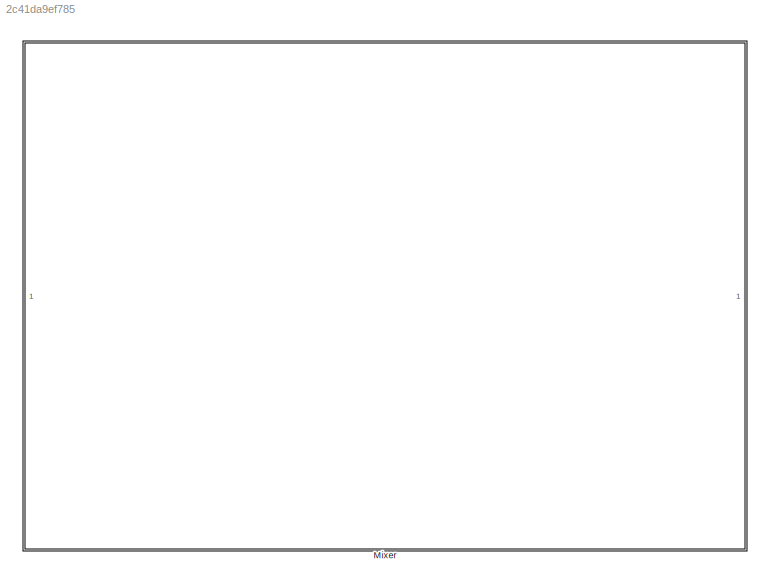
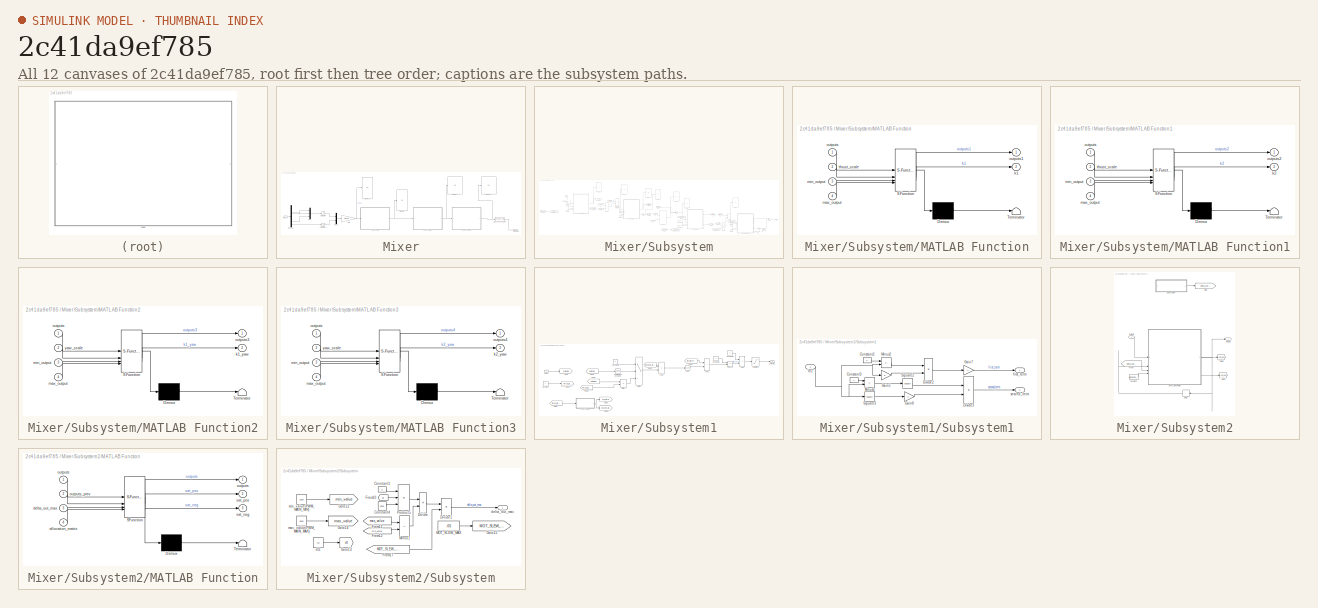
[diagram: thumbnail index - all 12 canvases of the model, root first then tree order]
MODEL slx_2c41da9ef785
KIND model
CONFIG AbsTol = auto
CONFIG EnableMultiTasking = off
CONFIG FixedStep = auto
CONFIG MaxStep = auto
CONFIG MinStep = auto
CONFIG RelTol = 1e-3
CONFIG SampleTimeConstraint = Unconstrained
CONFIG SolverName = VariableStepAuto
CONFIG StartTime = 0.0
CONFIG StopTime = 10.0
BLOCK [SubSystem] Mixer
BLOCK [Lookup_n-D] Mixer/1-D Lookup Table8
  BreakpointsForDimension1 = [-1 0 1]
  InputPortMap = u0
  InternalRulePriority = Speed
  InterpMethod = Akima spline
  NumberOfTableDimensions = 1
  RndMeth = Simplest
  Table = [omega_nom/2     omega_nom     sqrt(1.7)*omega_nom]
BLOCK [Demux] Mixer/Demux1
BLOCK [Display] Mixer/Display
  Decimation = 1
BLOCK [Display] Mixer/Display1
  Decimation = 1
BLOCK [Display] Mixer/Display2
  Decimation = 1
BLOCK [Display] Mixer/Display3
  Decimation = 1
BLOCK [Gain] Mixer/Gain
  Gain = allocation_matrix
  Multiplication = Matrix(K*u)
BLOCK [Mux] Mixer/Mux
  DisplayOption = bar
  Inputs = 3
BLOCK [Mux] Mixer/Mux1
  DisplayOption = bar
  Inputs = 2
BLOCK [Outport] Mixer/Omegas
BLOCK [Saturate] Mixer/Saturation
  LowerLimit = -1
  UpperLimit = 1
BLOCK [Saturate] Mixer/Saturation1
  LowerLimit = 0
  UpperLimit = 1
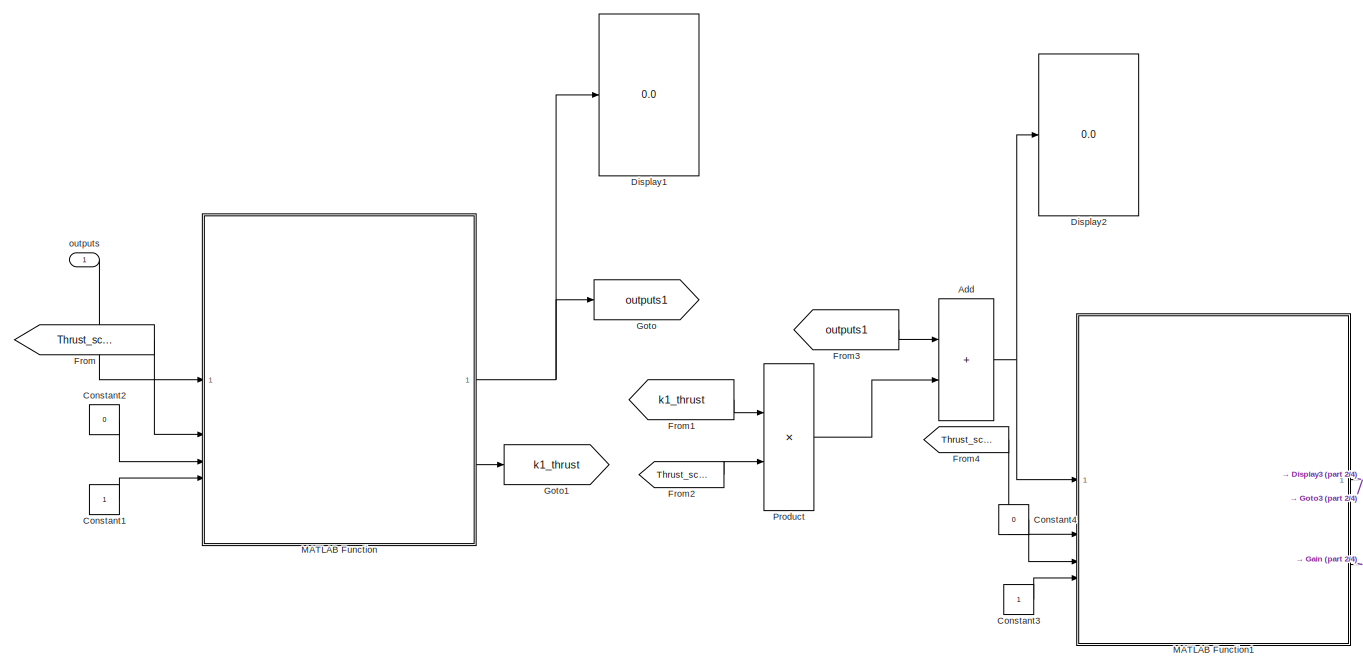
[diagram: Mixer/Subsystem - part 1/4, middle left region]
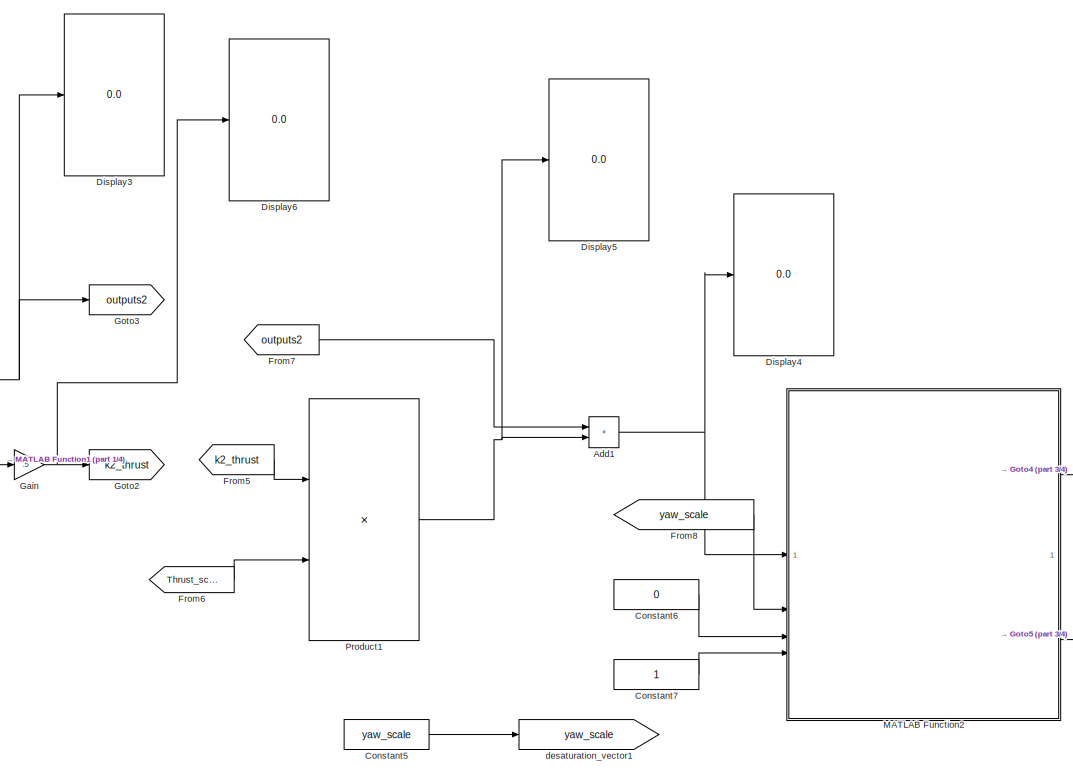
[diagram: Mixer/Subsystem - part 2/4, center side, full height]
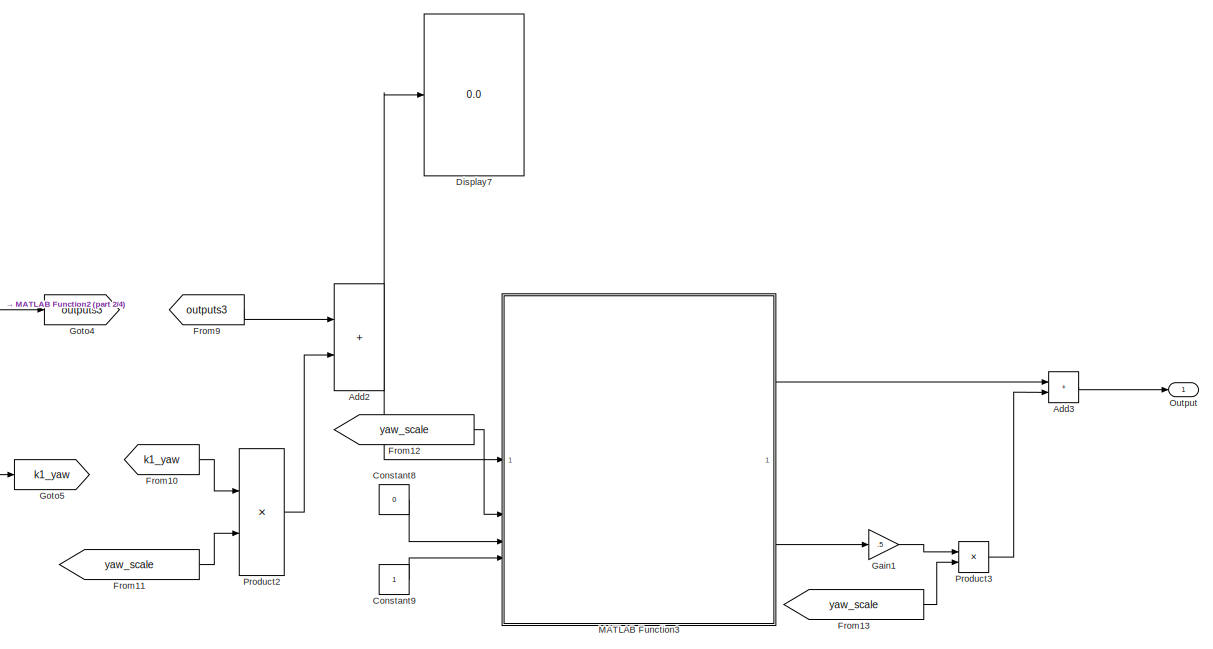
[diagram: Mixer/Subsystem - part 3/4, middle right region]
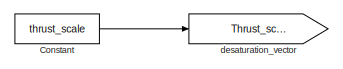
[diagram: Mixer/Subsystem - part 4/4, middle left region]
BLOCK [SubSystem] Mixer/Subsystem
BLOCK [Sum] Mixer/Subsystem/Add
  IconShape = rectangular
BLOCK [Sum] Mixer/Subsystem/Add1
  IconShape = rectangular
BLOCK [Sum] Mixer/Subsystem/Add2
  IconShape = rectangular
BLOCK [Sum] Mixer/Subsystem/Add3
  IconShape = rectangular
BLOCK [Constant] Mixer/Subsystem/Constant
  Value = thrust_scale
BLOCK [Constant] Mixer/Subsystem/Constant1
BLOCK [Constant] Mixer/Subsystem/Constant2
  Value = 0
BLOCK [Constant] Mixer/Subsystem/Constant3
BLOCK [Constant] Mixer/Subsystem/Constant4
  Value = 0
BLOCK [Constant] Mixer/Subsystem/Constant5
  Value = yaw_scale
BLOCK [Constant] Mixer/Subsystem/Constant6
  Value = 0
BLOCK [Constant] Mixer/Subsystem/Constant7
BLOCK [Constant] Mixer/Subsystem/Constant8
  Value = 0
BLOCK [Constant] Mixer/Subsystem/Constant9
BLOCK [Display] Mixer/Subsystem/Display1
  Decimation = 1
BLOCK [Display] Mixer/Subsystem/Display2
  Decimation = 1
BLOCK [Display] Mixer/Subsystem/Display3
  Decimation = 1
BLOCK [Display] Mixer/Subsystem/Display4
  Decimation = 1
BLOCK [Display] Mixer/Subsystem/Display5
  Decimation = 1
BLOCK [Display] Mixer/Subsystem/Display6
  Decimation = 1
BLOCK [Display] Mixer/Subsystem/Display7
  Decimation = 1
BLOCK [From] Mixer/Subsystem/From
  GotoTag = Thrust_scale
BLOCK [From] Mixer/Subsystem/From1
  GotoTag = k1_thrust
  TagVisibility = global
BLOCK [From] Mixer/Subsystem/From10
  GotoTag = k1_yaw
BLOCK [From] Mixer/Subsystem/From11
  GotoTag = yaw_scale
BLOCK [From] Mixer/Subsystem/From12
  GotoTag = yaw_scale
BLOCK [From] Mixer/Subsystem/From13
  GotoTag = yaw_scale
BLOCK [From] Mixer/Subsystem/From2
  GotoTag = Thrust_scale
BLOCK [From] Mixer/Subsystem/From3
  GotoTag = outputs1
  TagVisibility = global
BLOCK [From] Mixer/Subsystem/From4
  GotoTag = Thrust_scale
BLOCK [From] Mixer/Subsystem/From5
  GotoTag = k2_thrust
BLOCK [From] Mixer/Subsystem/From6
  GotoTag = Thrust_scale
BLOCK [From] Mixer/Subsystem/From7
  GotoTag = outputs2
BLOCK [From] Mixer/Subsystem/From8
  GotoTag = yaw_scale
BLOCK [From] Mixer/Subsystem/From9
  GotoTag = outputs3
BLOCK [Gain] Mixer/Subsystem/Gain
  Gain = .5
BLOCK [Gain] Mixer/Subsystem/Gain1
  Gain = .5
BLOCK [Goto] Mixer/Subsystem/Goto
  GotoTag = outputs1
  TagVisibility = global
BLOCK [Goto] Mixer/Subsystem/Goto1
  GotoTag = k1_thrust
  TagVisibility = global
BLOCK [Goto] Mixer/Subsystem/Goto2
  GotoTag = k2_thrust
BLOCK [Goto] Mixer/Subsystem/Goto3
  GotoTag = outputs2
BLOCK [Goto] Mixer/Subsystem/Goto4
  GotoTag = outputs3
BLOCK [Goto] Mixer/Subsystem/Goto5
  GotoTag = k1_yaw
BLOCK [SubSystem] Mixer/Subsystem/MATLAB Function
  ErrorFcn = Stateflow.Translate.translate
  PermitHierarchicalResolution = ExplicitOnly
  SFBlockType = MATLAB Function
  TreatAsAtomicUnit = on
BLOCK [Demux] Mixer/Subsystem/MATLAB Function/ Demux 
  Outputs = 1
BLOCK [S-Function] Mixer/Subsystem/MATLAB Function/ SFunction 
  EnableBusSupport = on
  FunctionName = sf_sfun
  PortCounts = [4 3]
  SFcnIsStateOwnerBlock = off
  SFunctionDeploymentMode = off
  Tag = Stateflow S-Function 2
BLOCK [Terminator] Mixer/Subsystem/MATLAB Function/ Terminator 
BLOCK [Outport] Mixer/Subsystem/MATLAB Function/k1
  Port = 2
BLOCK [Inport] Mixer/Subsystem/MATLAB Function/max_output
  Port = 4
BLOCK [Inport] Mixer/Subsystem/MATLAB Function/min_output
  Port = 3
BLOCK [Inport] Mixer/Subsystem/MATLAB Function/outputs
BLOCK [Outport] Mixer/Subsystem/MATLAB Function/outputs1
BLOCK [Inport] Mixer/Subsystem/MATLAB Function/thrust_scale
  Port = 2
BLOCK [SubSystem] Mixer/Subsystem/MATLAB Function1
  ErrorFcn = Stateflow.Translate.translate
  PermitHierarchicalResolution = ExplicitOnly
  SFBlockType = MATLAB Function
  TreatAsAtomicUnit = on
BLOCK [Demux] Mixer/Subsystem/MATLAB Function1/ Demux 
  Outputs = 1
BLOCK [S-Function] Mixer/Subsystem/MATLAB Function1/ SFunction 
  EnableBusSupport = on
  FunctionName = sf_sfun
  PortCounts = [4 3]
  SFcnIsStateOwnerBlock = off
  SFunctionDeploymentMode = off
  Tag = Stateflow S-Function 1
BLOCK [Terminator] Mixer/Subsystem/MATLAB Function1/ Terminator 
BLOCK [Outport] Mixer/Subsystem/MATLAB Function1/k2
  Port = 2
BLOCK [Inport] Mixer/Subsystem/MATLAB Function1/max_output
  Port = 4
BLOCK [Inport] Mixer/Subsystem/MATLAB Function1/min_output
  Port = 3
BLOCK [Inport] Mixer/Subsystem/MATLAB Function1/outputs
BLOCK [Outport] Mixer/Subsystem/MATLAB Function1/outputs2
BLOCK [Inport] Mixer/Subsystem/MATLAB Function1/thrust_scale
  Port = 2
BLOCK [SubSystem] Mixer/Subsystem/MATLAB Function2
  ErrorFcn = Stateflow.Translate.translate
  PermitHierarchicalResolution = ExplicitOnly
  SFBlockType = MATLAB Function
  TreatAsAtomicUnit = on
BLOCK [Demux] Mixer/Subsystem/MATLAB Function2/ Demux 
  Outputs = 1
BLOCK [S-Function] Mixer/Subsystem/MATLAB Function2/ SFunction 
  EnableBusSupport = on
  FunctionName = sf_sfun
  PortCounts = [4 3]
  SFcnIsStateOwnerBlock = off
  SFunctionDeploymentMode = off
  Tag = Stateflow S-Function 3
BLOCK [Terminator] Mixer/Subsystem/MATLAB Function2/ Terminator 
BLOCK [Outport] Mixer/Subsystem/MATLAB Function2/k1_yaw
  Port = 2
BLOCK [Inport] Mixer/Subsystem/MATLAB Function2/max_output
  Port = 4
BLOCK [Inport] Mixer/Subsystem/MATLAB Function2/min_output
  Port = 3
BLOCK [Inport] Mixer/Subsystem/MATLAB Function2/outputs
BLOCK [Outport] Mixer/Subsystem/MATLAB Function2/outputs3
BLOCK [Inport] Mixer/Subsystem/MATLAB Function2/yaw_scale
  Port = 2
BLOCK [SubSystem] Mixer/Subsystem/MATLAB Function3
  ErrorFcn = Stateflow.Translate.translate
  PermitHierarchicalResolution = ExplicitOnly
  SFBlockType = MATLAB Function
  TreatAsAtomicUnit = on
BLOCK [Demux] Mixer/Subsystem/MATLAB Function3/ Demux 
  Outputs = 1
BLOCK [S-Function] Mixer/Subsystem/MATLAB Function3/ SFunction 
  EnableBusSupport = on
  FunctionName = sf_sfun
  PortCounts = [4 3]
  SFcnIsStateOwnerBlock = off
  SFunctionDeploymentMode = off
  Tag = Stateflow S-Function 5
BLOCK [Terminator] Mixer/Subsystem/MATLAB Function3/ Terminator 
BLOCK [Outport] Mixer/Subsystem/MATLAB Function3/k2_yaw
  Port = 2
BLOCK [Inport] Mixer/Subsystem/MATLAB Function3/max_output
  Port = 4
BLOCK [Inport] Mixer/Subsystem/MATLAB Function3/min_output
  Port = 3
BLOCK [Inport] Mixer/Subsystem/MATLAB Function3/outputs
BLOCK [Outport] Mixer/Subsystem/MATLAB Function3/outputs4
BLOCK [Inport] Mixer/Subsystem/MATLAB Function3/yaw_scale
  Port = 2
BLOCK [Outport] Mixer/Subsystem/Output
BLOCK [Product] Mixer/Subsystem/Product
BLOCK [Product] Mixer/Subsystem/Product1
BLOCK [Product] Mixer/Subsystem/Product2
BLOCK [Product] Mixer/Subsystem/Product3
BLOCK [Goto] Mixer/Subsystem/desaturation_vector
  GotoTag = Thrust_scale
BLOCK [Goto] Mixer/Subsystem/desaturation_vector1
  GotoTag = yaw_scale
BLOCK [Inport] Mixer/Subsystem/outputs
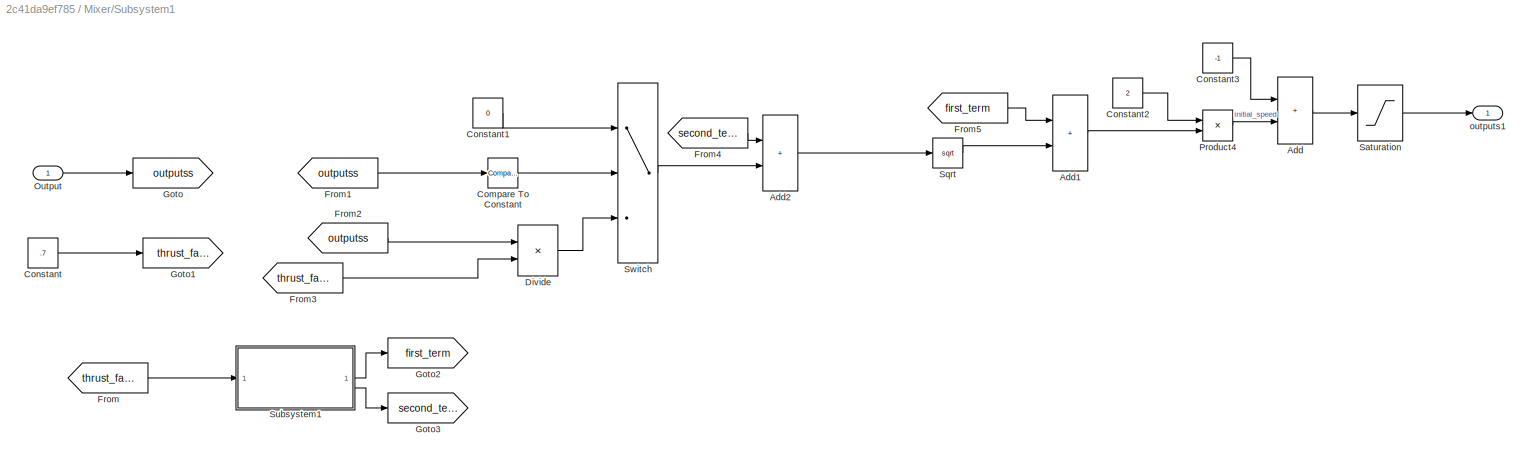
BLOCK [SubSystem] Mixer/Subsystem1
BLOCK [Sum] Mixer/Subsystem1/Add
  IconShape = rectangular
BLOCK [Sum] Mixer/Subsystem1/Add1
  IconShape = rectangular
BLOCK [Sum] Mixer/Subsystem1/Add2
  IconShape = rectangular
BLOCK [Reference] Mixer/Subsystem1/Compare To Constant  REF=simulink/Logic and Bit
Operations/Compare
To Constant
  SourceBlock = simulink/Logic and Bit\nOperations/Compare\nTo Constant
  SourceType = Compare To Constant
BLOCK [Constant] Mixer/Subsystem1/Constant
  Value = .7
BLOCK [Constant] Mixer/Subsystem1/Constant1
  Value = 0
BLOCK [Constant] Mixer/Subsystem1/Constant2
  Value = 2
BLOCK [Constant] Mixer/Subsystem1/Constant3
  Value = -1
BLOCK [Product] Mixer/Subsystem1/Divide
  Inputs = */
BLOCK [From] Mixer/Subsystem1/From
  GotoTag = thrust_factor
BLOCK [From] Mixer/Subsystem1/From1
  GotoTag = outputss
BLOCK [From] Mixer/Subsystem1/From2
  GotoTag = outputss
BLOCK [From] Mixer/Subsystem1/From3
  GotoTag = thrust_factor
BLOCK [From] Mixer/Subsystem1/From4
  GotoTag = second_term
BLOCK [From] Mixer/Subsystem1/From5
  GotoTag = first_term
BLOCK [Goto] Mixer/Subsystem1/Goto
  GotoTag = outputss
BLOCK [Goto] Mixer/Subsystem1/Goto1
  GotoTag = thrust_factor
BLOCK [Goto] Mixer/Subsystem1/Goto2
  GotoTag = first_term
BLOCK [Goto] Mixer/Subsystem1/Goto3
  GotoTag = second_term
BLOCK [Inport] Mixer/Subsystem1/Output
BLOCK [Product] Mixer/Subsystem1/Product4
BLOCK [Saturate] Mixer/Subsystem1/Saturation
  LowerLimit = -1
  UpperLimit = 1
BLOCK [Sqrt] Mixer/Subsystem1/Sqrt
BLOCK [SubSystem] Mixer/Subsystem1/Subsystem1
BLOCK [Constant] Mixer/Subsystem1/Subsystem1/Constant2
BLOCK [Constant] Mixer/Subsystem1/Subsystem1/Constant3
BLOCK [Product] Mixer/Subsystem1/Subsystem1/Divide2
  Inputs = */
BLOCK [Product] Mixer/Subsystem1/Subsystem1/Divide3
  Inputs = */
BLOCK [Gain] Mixer/Subsystem1/Subsystem1/Gain5
  Gain = 2
BLOCK [Gain] Mixer/Subsystem1/Subsystem1/Gain7
  Gain = -1
BLOCK [Gain] Mixer/Subsystem1/Subsystem1/Gain8
  Gain = 4
BLOCK [Inport] Mixer/Subsystem1/Subsystem1/In1
BLOCK [Sum] Mixer/Subsystem1/Subsystem1/Minus2
  IconShape = rectangular
  Inputs = +-
BLOCK [Sum] Mixer/Subsystem1/Subsystem1/Minus3
  IconShape = rectangular
  Inputs = +-
BLOCK [Math] Mixer/Subsystem1/Subsystem1/Square2
  Operator = square
BLOCK [Math] Mixer/Subsystem1/Subsystem1/Square3
  Operator = square
BLOCK [Outport] Mixer/Subsystem1/Subsystem1/first_term
BLOCK [Outport] Mixer/Subsystem1/Subsystem1/second_term
  Port = 2
BLOCK [Switch] Mixer/Subsystem1/Switch
  Criteria = u2 ~= 0
  InputSameDT = off
  SaturateOnIntegerOverflow = off
BLOCK [Outport] Mixer/Subsystem1/outputs1
BLOCK [SubSystem] Mixer/Subsystem2
BLOCK [Constant] Mixer/Subsystem2/Constant
  Value = allocation_matrix
BLOCK [Delay] Mixer/Subsystem2/Delay
  DelayLength = 1
  InputPortMap = u0
  NameLocation = top
BLOCK [From] Mixer/Subsystem2/From
  GotoTag = delta_out_max
BLOCK [Goto] Mixer/Subsystem2/Goto
  GotoTag = delta_out_max
BLOCK [Goto] Mixer/Subsystem2/Goto1
  GotoTag = sat_pos
  TagVisibility = global
BLOCK [Goto] Mixer/Subsystem2/Goto2
  GotoTag = sat_neg
  TagVisibility = global
BLOCK [SubSystem] Mixer/Subsystem2/MATLAB Function
  ErrorFcn = Stateflow.Translate.translate
  PermitHierarchicalResolution = ExplicitOnly
  SFBlockType = MATLAB Function
  TreatAsAtomicUnit = on
BLOCK [Demux] Mixer/Subsystem2/MATLAB Function/ Demux 
  Outputs = 1
BLOCK [S-Function] Mixer/Subsystem2/MATLAB Function/ SFunction 
  EnableBusSupport = on
  FunctionName = sf_sfun
  PortCounts = [4 4]
  SFcnIsStateOwnerBlock = off
  SFunctionDeploymentMode = off
  Tag = Stateflow S-Function 6
BLOCK [Terminator] Mixer/Subsystem2/MATLAB Function/ Terminator 
BLOCK [Inport] Mixer/Subsystem2/MATLAB Function/allocation_matrix
  Port = 4
BLOCK [Inport] Mixer/Subsystem2/MATLAB Function/delta_out_max
  Port = 3
BLOCK [Outport] Mixer/Subsystem2/MATLAB Function/outputs
BLOCK [Inport] Mixer/Subsystem2/MATLAB Function/outputs 
BLOCK [Inport] Mixer/Subsystem2/MATLAB Function/outputs_prev
  Port = 2
BLOCK [Outport] Mixer/Subsystem2/MATLAB Function/sat_neg
  Port = 3
BLOCK [Outport] Mixer/Subsystem2/MATLAB Function/sat_pos
  Port = 2
BLOCK [SubSystem] Mixer/Subsystem2/Subsystem
BLOCK [Constant] Mixer/Subsystem2/Subsystem/Constant1
  Value = 2
BLOCK [Constant] Mixer/Subsystem2/Subsystem/Constant4
  Value = 1000
BLOCK [Product] Mixer/Subsystem2/Subsystem/Divide
  Inputs = */
BLOCK [Product] Mixer/Subsystem2/Subsystem/Divide1
  Inputs = */
BLOCK [From] Mixer/Subsystem2/Subsystem/From10
  GotoTag = dt
BLOCK [From] Mixer/Subsystem2/Subsystem/From11
  GotoTag = max_value
BLOCK [From] Mixer/Subsystem2/Subsystem/From12
  GotoTag = min_value
BLOCK [From] Mixer/Subsystem2/Subsystem/From17
  GotoTag = MOT_SLEW_MAX
BLOCK [Goto] Mixer/Subsystem2/Subsystem/Goto12
  GotoTag = min_value
BLOCK [Goto] Mixer/Subsystem2/Subsystem/Goto13
  GotoTag = dt
BLOCK [Goto] Mixer/Subsystem2/Subsystem/Goto14
  GotoTag = max_value
BLOCK [Goto] Mixer/Subsystem2/Subsystem/Goto15
  GotoTag = MOT_SLEW_MAX
BLOCK [Constant] Mixer/Subsystem2/Subsystem/MOT_SLEW_MAX
  Value = .05
BLOCK [Sum] Mixer/Subsystem2/Subsystem/Minus1
  IconShape = rectangular
  Inputs = +-
BLOCK [Product] Mixer/Subsystem2/Subsystem/Product5
  Inputs = 3
BLOCK [Outport] Mixer/Subsystem2/Subsystem/delta_out_max
BLOCK [Constant] Mixer/Subsystem2/Subsystem/dt1
  Value = .02
BLOCK [Constant] Mixer/Subsystem2/Subsystem/max_value(PWM_MAIN_MAX)
  Value = 2000
BLOCK [Constant] Mixer/Subsystem2/Subsystem/min_value(PWM_MAIN_MIN)
  Value = 1000
BLOCK [Outport] Mixer/Subsystem2/outputs
BLOCK [Inport] Mixer/Subsystem2/outputs 
BLOCK [Inport] Mixer/torques
LINE Mixer/1-D Lookup Table8:1 -> Mixer/Omegas:1
LINE Mixer/Demux1:1 -> Mixer/Mux:1
LINE Mixer/Demux1:2 -> Mixer/Mux:2
LINE Mixer/Demux1:3 -> Mixer/Mux:3
LINE Mixer/Demux1:4 -> Mixer/Saturation1:1
NET Mixer/Gain:1 -> Mixer/Display1:1, Mixer/Subsystem:1
LINE Mixer/Mux1:1 -> Mixer/Gain:1
LINE Mixer/Mux:1 -> Mixer/Saturation:1
LINE Mixer/Saturation1:1 -> Mixer/Mux1:2
LINE Mixer/Saturation:1 -> Mixer/Mux1:1
NET Mixer/Subsystem/Add1:1 -> Mixer/Subsystem/Display4:1, Mixer/Subsystem/MATLAB Function2:1
NET Mixer/Subsystem/Add2:1 -> Mixer/Subsystem/Display7:1, Mixer/Subsystem/MATLAB Function3:1
LINE Mixer/Subsystem/Add3:1 -> Mixer/Subsystem/Output:1
NET Mixer/Subsystem/Add:1 -> Mixer/Subsystem/Display2:1, Mixer/Subsystem/MATLAB Function1:1
LINE Mixer/Subsystem/Constant1:1 -> Mixer/Subsystem/MATLAB Function:4
LINE Mixer/Subsystem/Constant2:1 -> Mixer/Subsystem/MATLAB Function:3
LINE Mixer/Subsystem/Constant3:1 -> Mixer/Subsystem/MATLAB Function1:4
LINE Mixer/Subsystem/Constant4:1 -> Mixer/Subsystem/MATLAB Function1:3
LINE Mixer/Subsystem/Constant5:1 -> Mixer/Subsystem/desaturation_vector1:1
LINE Mixer/Subsystem/Constant6:1 -> Mixer/Subsystem/MATLAB Function2:3
LINE Mixer/Subsystem/Constant7:1 -> Mixer/Subsystem/MATLAB Function2:4
LINE Mixer/Subsystem/Constant8:1 -> Mixer/Subsystem/MATLAB Function3:3
LINE Mixer/Subsystem/Constant9:1 -> Mixer/Subsystem/MATLAB Function3:4
LINE Mixer/Subsystem/Constant:1 -> Mixer/Subsystem/desaturation_vector:1
LINE Mixer/Subsystem/From10:1 -> Mixer/Subsystem/Product2:1
LINE Mixer/Subsystem/From11:1 -> Mixer/Subsystem/Product2:2
LINE Mixer/Subsystem/From12:1 -> Mixer/Subsystem/MATLAB Function3:2
LINE Mixer/Subsystem/From13:1 -> Mixer/Subsystem/Product3:2
LINE Mixer/Subsystem/From1:1 -> Mixer/Subsystem/Product:1
LINE Mixer/Subsystem/From2:1 -> Mixer/Subsystem/Product:2
LINE Mixer/Subsystem/From3:1 -> Mixer/Subsystem/Add:1
LINE Mixer/Subsystem/From4:1 -> Mixer/Subsystem/MATLAB Function1:2
LINE Mixer/Subsystem/From5:1 -> Mixer/Subsystem/Product1:1
LINE Mixer/Subsystem/From6:1 -> Mixer/Subsystem/Product1:2
LINE Mixer/Subsystem/From7:1 -> Mixer/Subsystem/Add1:1
LINE Mixer/Subsystem/From8:1 -> Mixer/Subsystem/MATLAB Function2:2
LINE Mixer/Subsystem/From9:1 -> Mixer/Subsystem/Add2:1
LINE Mixer/Subsystem/From:1 -> Mixer/Subsystem/MATLAB Function:2
LINE Mixer/Subsystem/Gain1:1 -> Mixer/Subsystem/Product3:1
NET Mixer/Subsystem/Gain:1 -> Mixer/Subsystem/Display6:1, Mixer/Subsystem/Goto2:1
NET Mixer/Subsystem/MATLAB Function1:1 -> Mixer/Subsystem/Display3:1, Mixer/Subsystem/Goto3:1
LINE Mixer/Subsystem/MATLAB Function1:2 -> Mixer/Subsystem/Gain:1
LINE Mixer/Subsystem/MATLAB Function2:1 -> Mixer/Subsystem/Goto4:1
LINE Mixer/Subsystem/MATLAB Function2:2 -> Mixer/Subsystem/Goto5:1
LINE Mixer/Subsystem/MATLAB Function3:1 -> Mixer/Subsystem/Add3:1
LINE Mixer/Subsystem/MATLAB Function3:2 -> Mixer/Subsystem/Gain1:1
NET Mixer/Subsystem/MATLAB Function:1 -> Mixer/Subsystem/Display1:1, Mixer/Subsystem/Goto:1
LINE Mixer/Subsystem/MATLAB Function:2 -> Mixer/Subsystem/Goto1:1
NET Mixer/Subsystem/Product1:1 -> Mixer/Subsystem/Add1:2, Mixer/Subsystem/Display5:1
LINE Mixer/Subsystem/Product2:1 -> Mixer/Subsystem/Add2:2
LINE Mixer/Subsystem/Product3:1 -> Mixer/Subsystem/Add3:2
LINE Mixer/Subsystem/Product:1 -> Mixer/Subsystem/Add:2
LINE Mixer/Subsystem/outputs:1 -> Mixer/Subsystem/MATLAB Function:1
LINE Mixer/Subsystem1/Add1:1 -> Mixer/Subsystem1/Product4:2
LINE Mixer/Subsystem1/Add2:1 -> Mixer/Subsystem1/Sqrt:1
LINE Mixer/Subsystem1/Add:1 -> Mixer/Subsystem1/Saturation:1
LINE Mixer/Subsystem1/Compare To Constant:1 -> Mixer/Subsystem1/Switch:2
LINE Mixer/Subsystem1/Constant1:1 -> Mixer/Subsystem1/Switch:1
LINE Mixer/Subsystem1/Constant2:1 -> Mixer/Subsystem1/Product4:1
LINE Mixer/Subsystem1/Constant3:1 -> Mixer/Subsystem1/Add:1
LINE Mixer/Subsystem1/Constant:1 -> Mixer/Subsystem1/Goto1:1
LINE Mixer/Subsystem1/Divide:1 -> Mixer/Subsystem1/Switch:3
LINE Mixer/Subsystem1/From1:1 -> Mixer/Subsystem1/Compare To Constant:1
LINE Mixer/Subsystem1/From2:1 -> Mixer/Subsystem1/Divide:1
LINE Mixer/Subsystem1/From3:1 -> Mixer/Subsystem1/Divide:2
LINE Mixer/Subsystem1/From4:1 -> Mixer/Subsystem1/Add2:1
LINE Mixer/Subsystem1/From5:1 -> Mixer/Subsystem1/Add1:1
LINE Mixer/Subsystem1/From:1 -> Mixer/Subsystem1/Subsystem1:1
LINE Mixer/Subsystem1/Output:1 -> Mixer/Subsystem1/Goto:1
LINE Mixer/Subsystem1/Product4:1 -> Mixer/Subsystem1/Add:2
LINE Mixer/Subsystem1/Saturation:1 -> Mixer/Subsystem1/outputs1:1
LINE Mixer/Subsystem1/Sqrt:1 -> Mixer/Subsystem1/Add1:2
LINE Mixer/Subsystem1/Subsystem1/Constant2:1 -> Mixer/Subsystem1/Subsystem1/Minus2:1
LINE Mixer/Subsystem1/Subsystem1/Constant3:1 -> Mixer/Subsystem1/Subsystem1/Minus3:1
LINE Mixer/Subsystem1/Subsystem1/Divide2:1 -> Mixer/Subsystem1/Subsystem1/Gain7:1
LINE Mixer/Subsystem1/Subsystem1/Divide3:1 -> Mixer/Subsystem1/Subsystem1/second_term:1
LINE Mixer/Subsystem1/Subsystem1/Gain5:1 -> Mixer/Subsystem1/Subsystem1/Divide2:2
LINE Mixer/Subsystem1/Subsystem1/Gain7:1 -> Mixer/Subsystem1/Subsystem1/first_term:1
LINE Mixer/Subsystem1/Subsystem1/Gain8:1 -> Mixer/Subsystem1/Subsystem1/Divide3:2
NET Mixer/Subsystem1/Subsystem1/In1:1 -> Mixer/Subsystem1/Subsystem1/Gain5:1, Mixer/Subsystem1/Subsystem1/Minus2:2, Mixer/Subsystem1/Subsystem1/Minus3:2, Mixer/Subsystem1/Subsystem1/Square3:1
LINE Mixer/Subsystem1/Subsystem1/Minus2:1 -> Mixer/Subsystem1/Subsystem1/Divide2:1
LINE Mixer/Subsystem1/Subsystem1/Minus3:1 -> Mixer/Subsystem1/Subsystem1/Square2:1
LINE Mixer/Subsystem1/Subsystem1/Square2:1 -> Mixer/Subsystem1/Subsystem1/Divide3:1
LINE Mixer/Subsystem1/Subsystem1/Square3:1 -> Mixer/Subsystem1/Subsystem1/Gain8:1
LINE Mixer/Subsystem1/Subsystem1:1 -> Mixer/Subsystem1/Goto2:1
LINE Mixer/Subsystem1/Subsystem1:2 -> Mixer/Subsystem1/Goto3:1
LINE Mixer/Subsystem1/Switch:1 -> Mixer/Subsystem1/Add2:2
NET Mixer/Subsystem1:1 -> Mixer/Display2:1, Mixer/Subsystem2:1
LINE Mixer/Subsystem2/Constant:1 -> Mixer/Subsystem2/MATLAB Function:4
LINE Mixer/Subsystem2/Delay:1 -> Mixer/Subsystem2/MATLAB Function:2
LINE Mixer/Subsystem2/From:1 -> Mixer/Subsystem2/MATLAB Function:3
NET Mixer/Subsystem2/MATLAB Function:1 -> Mixer/Subsystem2/Delay:1, Mixer/Subsystem2/outputs:1
LINE Mixer/Subsystem2/MATLAB Function:2 -> Mixer/Subsystem2/Goto1:1
LINE Mixer/Subsystem2/MATLAB Function:3 -> Mixer/Subsystem2/Goto2:1
LINE Mixer/Subsystem2/Subsystem/Constant1:1 -> Mixer/Subsystem2/Subsystem/Product5:1
LINE Mixer/Subsystem2/Subsystem/Constant4:1 -> Mixer/Subsystem2/Subsystem/Product5:3
LINE Mixer/Subsystem2/Subsystem/Divide1:1 -> Mixer/Subsystem2/Subsystem/delta_out_max:1
LINE Mixer/Subsystem2/Subsystem/Divide:1 -> Mixer/Subsystem2/Subsystem/Divide1:1
LINE Mixer/Subsystem2/Subsystem/From10:1 -> Mixer/Subsystem2/Subsystem/Product5:2
LINE Mixer/Subsystem2/Subsystem/From11:1 -> Mixer/Subsystem2/Subsystem/Minus1:1
LINE Mixer/Subsystem2/Subsystem/From12:1 -> Mixer/Subsystem2/Subsystem/Minus1:2
LINE Mixer/Subsystem2/Subsystem/From17:1 -> Mixer/Subsystem2/Subsystem/Divide1:2
LINE Mixer/Subsystem2/Subsystem/MOT_SLEW_MAX:1 -> Mixer/Subsystem2/Subsystem/Goto15:1
LINE Mixer/Subsystem2/Subsystem/Minus1:1 -> Mixer/Subsystem2/Subsystem/Divide:2
LINE Mixer/Subsystem2/Subsystem/Product5:1 -> Mixer/Subsystem2/Subsystem/Divide:1
LINE Mixer/Subsystem2/Subsystem/dt1:1 -> Mixer/Subsystem2/Subsystem/Goto13:1
LINE Mixer/Subsystem2/Subsystem/max_value(PWM_MAIN_MAX):1 -> Mixer/Subsystem2/Subsystem/Goto14:1
LINE Mixer/Subsystem2/Subsystem/min_value(PWM_MAIN_MIN):1 -> Mixer/Subsystem2/Subsystem/Goto12:1
LINE Mixer/Subsystem2/Subsystem:1 -> Mixer/Subsystem2/Goto:1
LINE Mixer/Subsystem2/outputs :1 -> Mixer/Subsystem2/MATLAB Function:1
NET Mixer/Subsystem2:1 -> Mixer/1-D Lookup Table8:1, Mixer/Display3:1
NET Mixer/Subsystem:1 -> Mixer/Display:1, Mixer/Subsystem1:1
LINE Mixer/torques:1 -> Mixer/Demux1:1
note: NET lines group one-source signal fan-out (src -> all destinations, sorted); 1:1 wires keep LINE
CHART Mixer/Subsystem/MATLAB Function1 states=1 transitions=1
  STATE_LABEL 'eML_blk_kernel()'
  STATE_LABEL 'SCRIPT:\nfunction [outputs2,k2] = fcn(outputs,thrust_scale,min_output,max_output)\nk_min = 0;\nk_max = 0;\n\n\nfor  i = 1:8 \n    if(outputs(i)< min_output)\n       k = (min_output - outputs(i)) / thrust_scale(i);\n\n            if (k < k_min)\n                 k_min = k; \n            end\n            \n            if (k > k_max)\n                 k_max = k; \n            end\n            \n    end\n    \n    if (ou...<+312ch>'
CHART Mixer/Subsystem/MATLAB Function states=1 transitions=1
  STATE_LABEL 'eML_blk_kernel()'
  STATE_LABEL 'SCRIPT:\nfunction [outputs1,k1] = fcn(outputs,thrust_scale,min_output,max_output)\nk_min = 0;\nk_max = 0;\n\n\nmotor_neg = zeros(8,1);\nmotor_pos = zeros(8,1);\n\nfor  i = 1:8 \n    if(outputs(i)< min_output)\n       k = (min_output - outputs(i)) / thrust_scale(i);\n\n            if (k < k_min)\n                 k_min = k; \n            end\n            \n            if (k > k_max)\n                 k_max = k; \n   ...<+412ch>'
CHART Mixer/Subsystem/MATLAB Function2 states=1 transitions=1
  STATE_LABEL 'eML_blk_kernel()'
  STATE_LABEL 'SCRIPT:\nfunction [outputs3,k1_yaw] = fcn(outputs,yaw_scale,min_output,max_output)\nk_min = 0;\nk_max = 0;\n\n\nfor  i = 1:8 \n    if(outputs(i)< min_output)\n       k = (min_output - outputs(i)) / yaw_scale(i);\n\n            if (k < k_min)\n                 k_min = k; \n            end\n            \n            if (k > k_max)\n                 k_max = k; \n            end\n            \n    end\n    \n    if (outp...<+310ch>'
CHART Mixer/Subsystem/MATLAB Function3 states=1 transitions=1
  STATE_LABEL 'eML_blk_kernel()'
  STATE_LABEL 'SCRIPT:\nfunction [outputs4,k2_yaw] = fcn(outputs,yaw_scale,min_output,max_output)\nk_min = 0;\nk_max = 0;\n\nfor  i = 1:8 \n    if(outputs(i)< min_output)\n       k = (min_output - outputs(i)) / yaw_scale(i);\n\n            if (k < k_min)\n                 k_min = k; \n            end\n            \n            if (k > k_max)\n                 k_max = k; \n            end\n            \n    end\n    \n    if (outpu...<+310ch>'
CHART Mixer/Subsystem2/MATLAB Function states=1 transitions=1
  STATE_LABEL 'eML_blk_kernel()'
  STATE_LABEL 'SCRIPT:\nfunction [outputs,sat_pos,sat_neg] = fcn(outputs,outputs_prev,delta_out_max,allocation_matrix)\n\n\nroll_pos = 0;\nroll_neg = 0;\npitch_pos = 0;\npitch_neg = 0;\nyaw_pos = 0;\nyaw_neg = 0;\nthrust_pos = 0;\nthrust_neg = 0;\n\nfor i=1:8\n    clipping_high = 0;\n    clipping_low_roll_pitch = 0;\n    clipping_low_yaw = 0;\n    \n\n    \n    if (delta_out_max > 0)\n        delta_out = outputs(i) - outputs_prev(i)...<+1992ch>'
CHART  states=0 transitions=0
CHART  states=0 transitions=0
CHART  states=0 transitions=0
CHART  states=0 transitions=0
CHART  states=0 transitions=0
